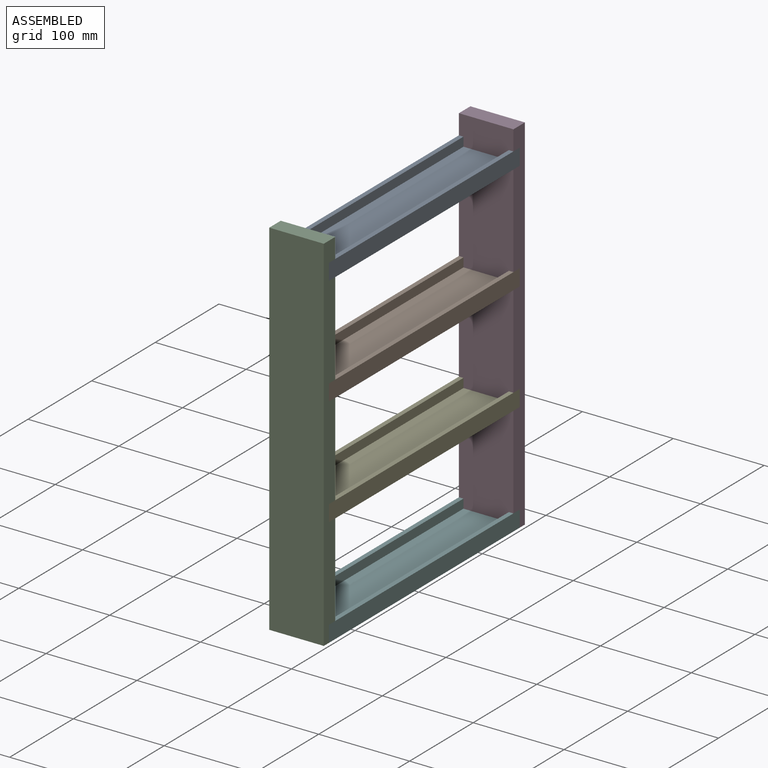
[diagram: assembled view]
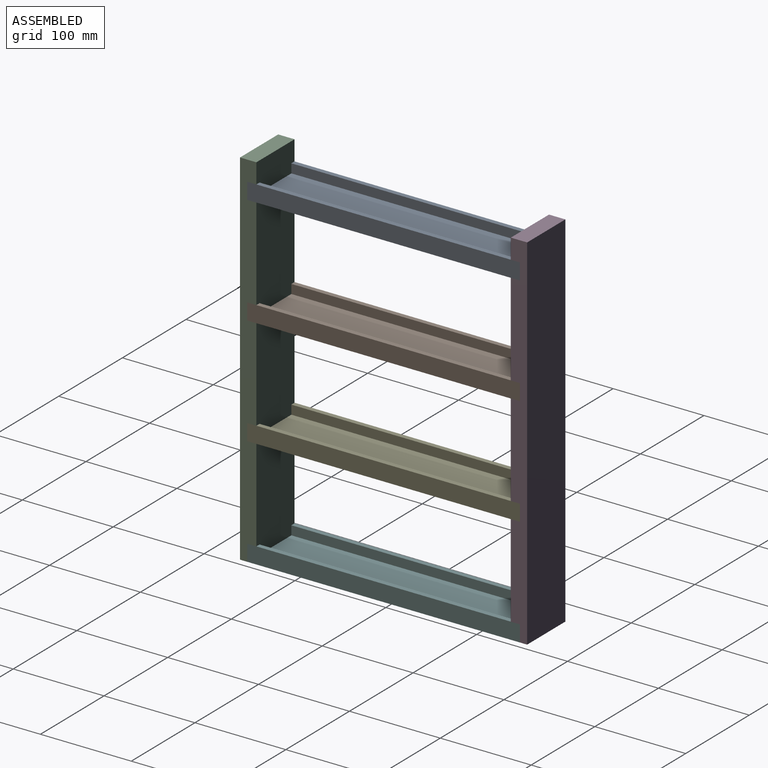
[diagram: assembled view, second angle]
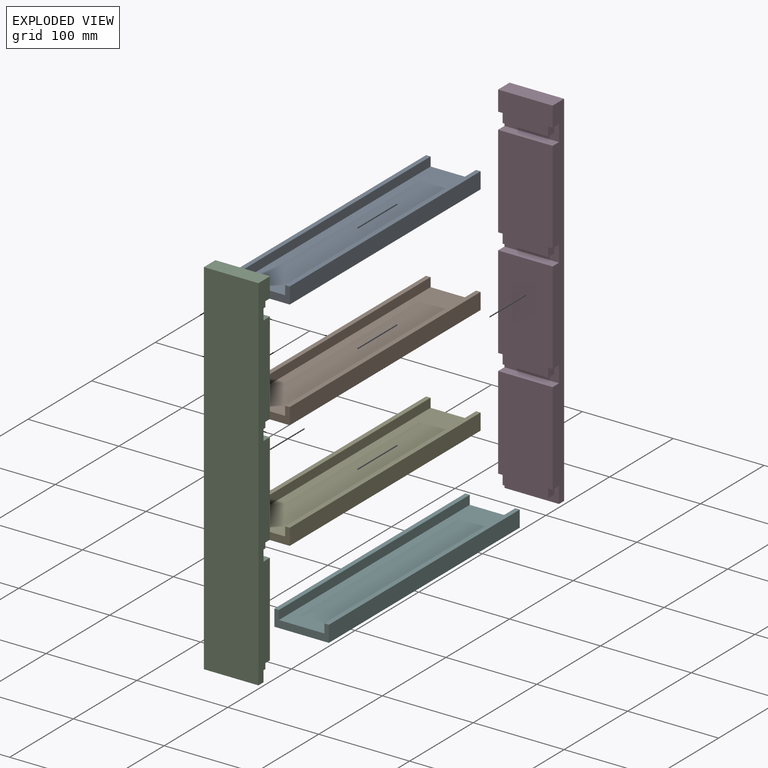
[diagram: exploded view]
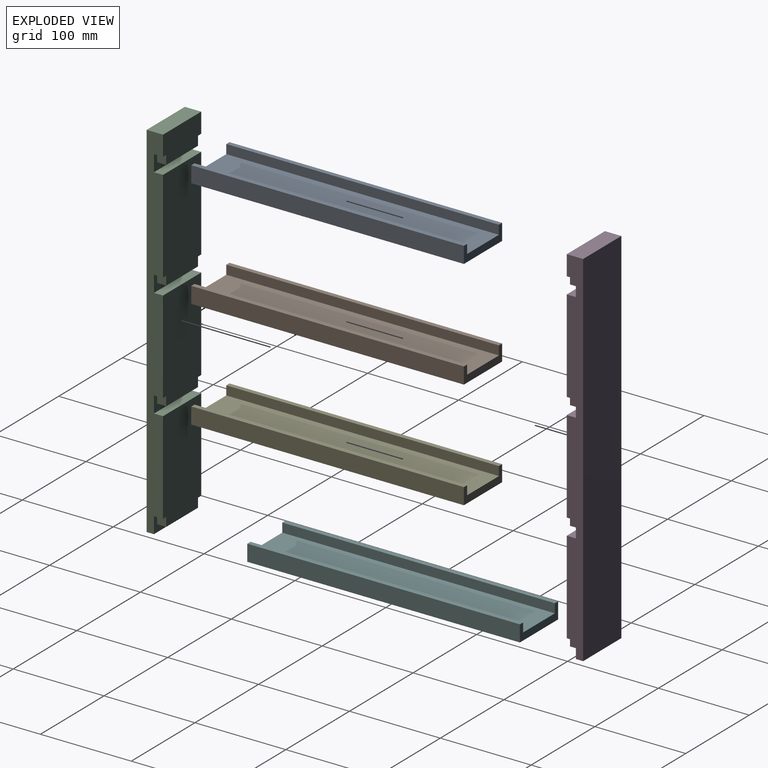
[diagram: exploded view, second angle]
ASSEMBLY  parts=6 mates=5
PART A: 10 faces, bbox 60x300x18 mm
  f0: plane 300x5mm, normal (0,0,1), area 1500mm2, adj f1,f7,f8,f9
  f1: plane 300x18mm, normal (-1,0,0), area 5400mm2, adj f0,f2,f8,f9
  f2: plane 300x60mm, normal (0,0,-1), area 18000mm2, adj f1,f3,f8,f9
  f3: plane 300x18mm, normal (1,0,0), area 5400mm2, adj f2,f4,f8,f9
  f4: plane 300x5mm, normal (0,0,1), area 1500mm2, adj f3,f5,f8,f9
  f5: plane 300x10mm, normal (-1,0,0), area 3000mm2, adj f4,f6,f8,f9
  f6: plane 300x50mm, normal (0,0,1), area 15000mm2, adj f5,f7,f8,f9
  f7: plane 300x10mm, normal (1,0,0), area 3000mm2, adj f0,f6,f8,f9
  f8: plane 60x18mm, normal (0,-1,0), area 580mm2, adj f0,f1,f2,f3,f4,f5,f6,f7
  f9: plane 60x18mm, normal (0,1,0), area 580mm2, adj f0,f1,f2,f3,f4,f5,f6,f7
PART B: same geometry as A
PART C: 36 faces, bbox 60x18x400 mm
  f0: plane 60x8mm, normal (0,0,-1), area 480mm2, adj f5,f6,f7,f35
  f1: plane 112x60mm, normal (0,-1,0), area 6620mm2, adj f5,f7,f23,f30,f31,f32,f33,f34
  f2: plane 112x60mm, normal (0,-1,0), area 6620mm2, adj f5,f7,f16,f24,f25,f26,f27,f28
  f3: plane 112x60mm, normal (0,-1,0), area 6620mm2, adj f5,f7,f9,f17,f18,f19,f20,f21
  f4: plane 60x32mm, normal (0,-1,0), area 1820mm2, adj f5,f7,f8,f10,f11,f12,f13,f14
  f5: plane 400x18mm, normal (1,0,0), area 6480mm2, adj f0,f1,f2,f3,f4,f6,f8,f9
  f6: plane 400x60mm, normal (0,1,0), area 24000mm2, adj f0,f5,f7,f8
  f7: plane 400x18mm, normal (-1,0,0), area 6480mm2, adj f0,f1,f2,f3,f4,f6,f8,f9
  f8: plane 60x18mm, normal (0,0,1), area 1080mm2, adj f4,f5,f6,f7
  f9: plane 60x10mm, normal (0,0,1), area 600mm2, adj f3,f5,f7,f15
  f10: plane 10x5mm, normal (0,0,-1), area 50mm2, adj f4,f5,f11,f15
  f11: plane 10x10mm, normal (1,0,0), area 100mm2, adj f4,f10,f12,f15
  f12: plane 50x10mm, normal (0,0,-1), area 500mm2, adj f4,f11,f13,f15
  f13: plane 10x10mm, normal (-1,0,0), area 100mm2, adj f4,f12,f14,f15
  f14: plane 10x5mm, normal (0,0,-1), area 50mm2, adj f4,f7,f13,f15
  f15: plane 60x18mm, normal (0,-1,0), area 580mm2, adj f5,f7,f9,f10,f11,f12,f13,f14
  f16: plane 60x10mm, normal (0,0,1), area 600mm2, adj f2,f5,f7,f22
  f17: plane 10x5mm, normal (0,0,-1), area 50mm2, adj f3,f5,f18,f22
  f18: plane 10x10mm, normal (1,0,0), area 100mm2, adj f3,f17,f19,f22
  f19: plane 50x10mm, normal (0,0,-1), area 500mm2, adj f3,f18,f20,f22
  f20: plane 10x10mm, normal (-1,0,0), area 100mm2, adj f3,f19,f21,f22
  f21: plane 10x5mm, normal (0,0,-1), area 50mm2, adj f3,f7,f20,f22
  f22: plane 60x18mm, normal (0,-1,0), area 580mm2, adj f5,f7,f16,f17,f18,f19,f20,f21
  f23: plane 60x10mm, normal (0,0,1), area 600mm2, adj f1,f5,f7,f29
  f24: plane 10x5mm, normal (0,0,-1), area 50mm2, adj f2,f5,f25,f29
  f25: plane 10x10mm, normal (1,0,0), area 100mm2, adj f2,f24,f26,f29
  f26: plane 50x10mm, normal (0,0,-1), area 500mm2, adj f2,f25,f27,f29
  f27: plane 10x10mm, normal (-1,0,0), area 100mm2, adj f2,f26,f28,f29
  f28: plane 10x5mm, normal (0,0,-1), area 50mm2, adj f2,f7,f27,f29
  f29: plane 60x18mm, normal (0,-1,0), area 580mm2, adj f5,f7,f23,f24,f25,f26,f27,f28
  f30: plane 10x10mm, normal (-1,0,0), area 100mm2, adj f1,f31,f34,f35
  f31: plane 10x5mm, normal (0,0,-1), area 50mm2, adj f1,f7,f30,f35
  f32: plane 10x5mm, normal (0,0,-1), area 50mm2, adj f1,f5,f33,f35
  f33: plane 10x10mm, normal (1,0,0), area 100mm2, adj f1,f32,f34,f35
  f34: plane 50x10mm, normal (0,0,-1), area 500mm2, adj f1,f30,f33,f35
  f35: plane 60x18mm, normal (0,-1,0), area 580mm2, adj f0,f5,f7,f30,f31,f32,f33,f34
PART D: same geometry as C
PART E: same geometry as A
PART F: same geometry as A
PLACE A t=(-131.47,-48.7,137.16)mm
PLACE B t=(-131.47,-48.7,17.16)mm
PLACE C rot(axis=(0,0,1),180deg) t=(-197.43,-343.84,-222.84)mm
PLACE D t=(-51.95,-53.55,-222.84)mm
PLACE E t=(-131.47,-48.7,-102.84)mm
PLACE F t=(-131.47,-48.7,-222.84)mm
MATE fastened F.f9 <-> D.f35  axis (0,1,0) through (-124.69,-48.7,-217.28)mm
MATE fastened D.f29 <-> E.f9  axis (0,-1,0) through (-124.69,-48.7,-102.84)mm
MATE fastened B.f9 <-> D.f22  axis (0,1,0) through (-124.69,-48.7,17.16)mm
MATE fastened C.f15 <-> A.f8  axis (0,1,0) through (-149.69,-348.7,145.16)mm
MATE fastened A.f9 <-> D.f15  axis (0,1,0) through (-124.69,-48.7,137.16)mm
